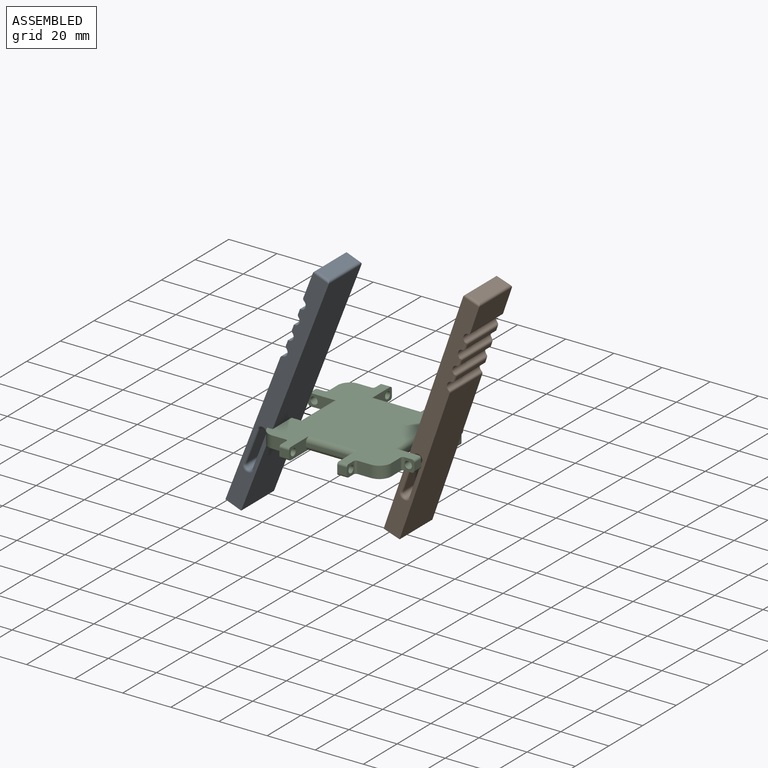
[diagram: assembled view]
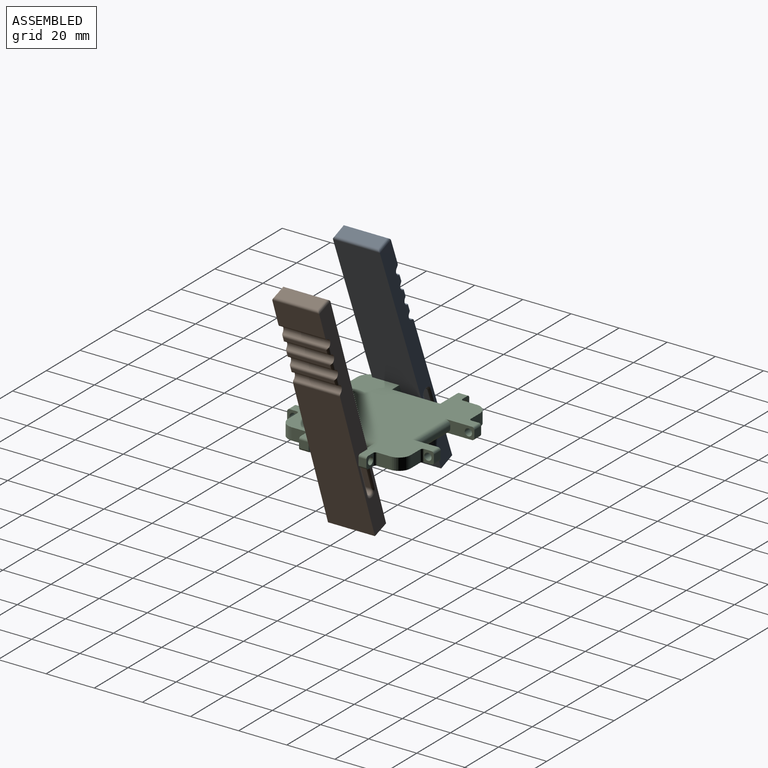
[diagram: assembled view, second angle]
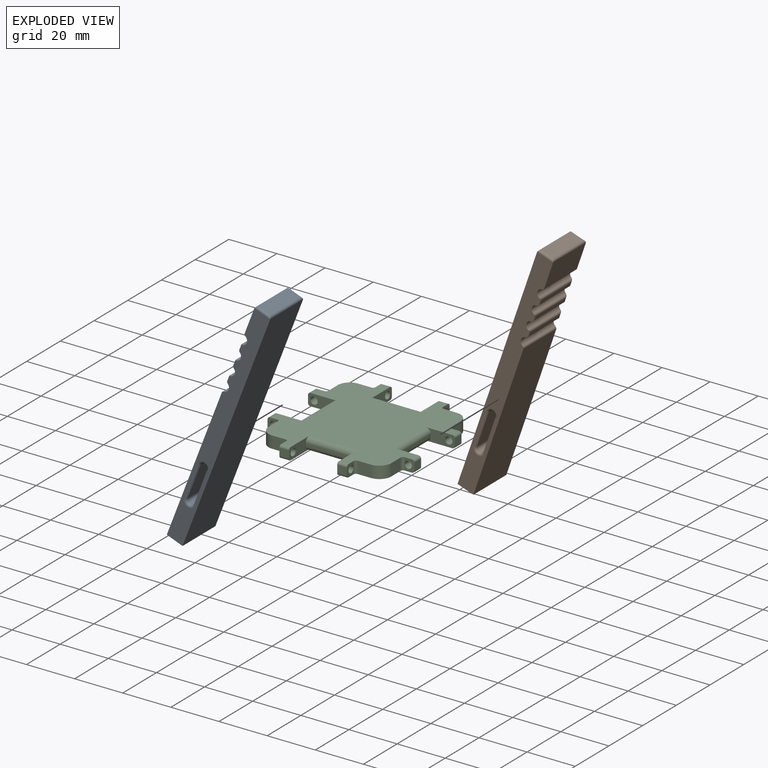
[diagram: exploded view]
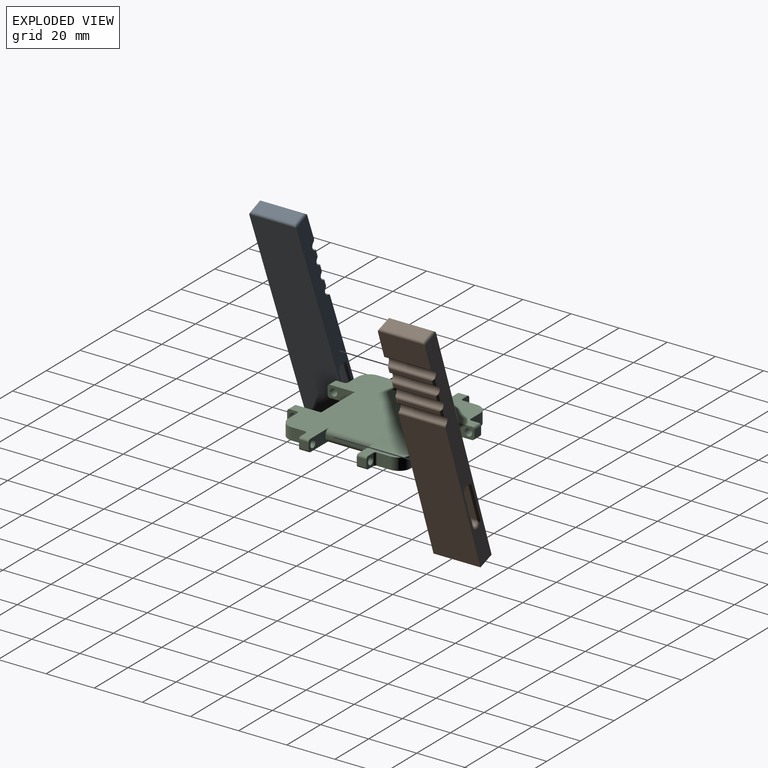
[diagram: exploded view, second angle]
ASSEMBLY  parts=3 mates=2
PART A: 55 faces, bbox 19.5x7x102.5 mm
  f0: plane 17.5x1.34mm, normal (0,-1,0), area 23.5mm2, adj f41,f42,f43,f44
  f1: plane 17.5x1.34mm, normal (0,-1,0), area 23.5mm2, adj f45,f46,f47,f48
  f2: plane 17.5x1.34mm, normal (0,-1,0), area 23.5mm2, adj f49,f50,f51,f52
  f3: plane 19.5x11.17mm, normal (0,-1,0), area 217.8mm2, adj f9,f10,f27,f53
  f4: cylinder r=2mm len=3.71mm, axis (0,0,-1), area 11.9mm2, adj f7,f30,f32,f36
  f5: plane 6x6mm, normal (0,0,-1), area 28.3mm2, adj f6
  f6: cylinder r=3mm len=6mm, axis (0,0,-1), area 113.1mm2, adj f5,f7
  f7: plane 6x6mm, normal (0,0,1), area 14.1mm2, adj f4,f6,f8,f31,f32,f33,f34,f35
  f8: cylinder r=2mm len=3.71mm, axis (0,0,-1), area 11.9mm2, adj f7,f30,f33,f35
  f9: plane 101.5x7mm, normal (-1,0,0), area 581mm2, adj f3,f12,f13,f18,f19,f20,f21,f29
  f10: plane 101.5x7mm, normal (1,0,0), area 581mm2, adj f3,f12,f13,f22,f23,f24,f25,f26
  f11: plane 17.5x5mm, normal (0,0,1), area 87.5mm2, adj f26,f27,f28,f29
  f12: plane 63.67x19.5mm, normal (0,-1,0), area 1241.6mm2, adj f9,f10,f30,f54
  f13: plane 101.5x19.5mm, normal (0,1,0), area 1979.3mm2, adj f9,f10,f28,f30
  f14: cylinder r=1.5mm len=17.5mm, axis (1,0,0), area 82.5mm2, adj f15,f17,f20,f24
  f15: plane 17.5x15mm, normal (0,-1,0), area 262.5mm2, adj f14,f16,f21,f22
  f16: cylinder r=1.5mm len=17.5mm, axis (1,0,0), area 82.5mm2, adj f15,f17,f19,f23
  f17: plane 17.5x15mm, normal (0,1,0), area 262.5mm2, adj f14,f16,f18,f25
  f18: cylinder r=1mm len=15mm, axis (0,0,-1), area 23.6mm2, adj f9,f17,f19,f20
  f19: torus R=2.5mm, axis (1,0,0), area 9.2mm2, adj f9,f16,f18,f21
  f20: torus R=2.5mm, axis (1,0,0), area 9.2mm2, adj f9,f14,f18,f21
  f21: cylinder r=1mm len=15mm, axis (0,0,1), area 23.6mm2, adj f9,f15,f19,f20
  f22: cylinder r=1mm len=15mm, axis (0,0,-1), area 23.6mm2, adj f10,f15,f23,f24
  f23: torus R=2.5mm, axis (1,0,0), area 9.2mm2, adj f10,f16,f22,f25
  f24: torus R=2.5mm, axis (1,0,0), area 9.2mm2, adj f10,f14,f22,f25
  f25: cylinder r=1mm len=15mm, axis (0,0,1), area 23.6mm2, adj f10,f17,f23,f24
  f26: cylinder r=1mm len=7mm, axis (0,1,0), area 9.9mm2, adj f10,f11,f27,f28
  f27: cylinder r=1mm len=19.5mm, axis (1,0,0), area 29.5mm2, adj f3,f11,f26,f29
  f28: cylinder r=1mm len=19.5mm, axis (-1,0,0), area 29.5mm2, adj f11,f13,f26,f29
  f29: cylinder r=1mm len=7mm, axis (0,-1,0), area 9.9mm2, adj f9,f11,f27,f28
  f30: plane 19.5x7mm, normal (0,0,-1), area 122.3mm2, adj f4,f8,f9,f10,f12,f13,f31,f32
  f31: plane 2.5x1.5mm, normal (-1,0,0), area 3.8mm2, adj f7,f30,f32,f33
  f32: plane 2.5x0.65mm, normal (0,1,0), area 1.6mm2, adj f4,f7,f30,f31
  f33: plane 2.5x0.65mm, normal (0,-1,0), area 1.6mm2, adj f7,f8,f30,f31
  f34: plane 2.5x1.5mm, normal (1,0,0), area 3.8mm2, adj f7,f30,f35,f36
  f35: plane 2.5x0.65mm, normal (0,-1,0), area 1.6mm2, adj f7,f8,f30,f34
  f36: plane 2.5x0.65mm, normal (0,1,0), area 1.6mm2, adj f4,f7,f30,f34
  f37: cylinder r=2mm len=19.5mm, axis (1,0,0), area 96mm2, adj f9,f10,f49,f50,f52,f53
  f38: cylinder r=2mm len=19.5mm, axis (1,0,0), area 96mm2, adj f9,f10,f45,f46,f48,f49,f51,f52
  f39: cylinder r=2mm len=19.5mm, axis (1,0,0), area 96mm2, adj f9,f10,f41,f42,f44,f45,f47,f48
  f40: cylinder r=2mm len=19.5mm, axis (1,0,0), area 96mm2, adj f9,f10,f41,f43,f44,f54
  f41: cylinder r=1mm len=3.54mm, axis (0,0,-1), area 4.1mm2, adj f0,f10,f39,f40,f42,f43
  f42: cylinder r=1mm len=19.39mm, axis (1,0,0), area 22.9mm2, adj f0,f39,f41,f44
  f43: cylinder r=1mm len=19.39mm, axis (1,0,0), area 22.9mm2, adj f0,f40,f41,f44
  f44: cylinder r=1mm len=3.54mm, axis (0,0,1), area 4.1mm2, adj f0,f9,f39,f40,f42,f43
  f45: cylinder r=1mm len=3.54mm, axis (0,0,-1), area 4.1mm2, adj f1,f10,f38,f39,f46,f47
  f46: cylinder r=1mm len=19.39mm, axis (1,0,0), area 22.9mm2, adj f1,f38,f45,f48
  f47: cylinder r=1mm len=19.39mm, axis (1,0,0), area 22.9mm2, adj f1,f39,f45,f48
  f48: cylinder r=1mm len=3.54mm, axis (0,0,1), area 4.1mm2, adj f1,f9,f38,f39,f46,f47
  f49: cylinder r=1mm len=3.54mm, axis (0,0,-1), area 4.1mm2, adj f2,f10,f37,f38,f50,f51
  f50: cylinder r=1mm len=19.39mm, axis (1,0,0), area 22.9mm2, adj f2,f37,f49,f52
  f51: cylinder r=1mm len=19.39mm, axis (1,0,0), area 22.9mm2, adj f2,f38,f49,f52
  f52: cylinder r=1mm len=3.54mm, axis (0,0,1), area 4.1mm2, adj f2,f9,f37,f38,f50,f51
  f53: cylinder r=1mm len=19.5mm, axis (1,0,0), area 24mm2, adj f3,f9,f10,f37
  f54: cylinder r=1mm len=19.5mm, axis (1,0,0), area 24mm2, adj f9,f10,f12,f40
PART B: same geometry as A
PART C: 87 faces, bbox 61x61x5 mm
  f0: plane 59x59mm, normal (0,0,1), area 2149.3mm2, adj f1,f2,f3,f4,f5,f6,f7,f8
  f1: plane 5.5x5mm, normal (0,-1,0), area 27.5mm2, adj f0,f9,f59,f86
  f2: plane 5.5x5mm, normal (-1,0,0), area 27.5mm2, adj f0,f9,f68,f84
  f3: plane 5.5x5mm, normal (0,1,0), area 27.5mm2, adj f0,f9,f74,f83
  f4: plane 5.5x5mm, normal (1,0,0), area 27.5mm2, adj f0,f9,f77,f83
  f5: plane 5.5x5mm, normal (1,0,0), area 27.5mm2, adj f0,f9,f80,f86
  f6: plane 5.5x5mm, normal (0,1,0), area 27.5mm2, adj f0,f9,f71,f84
  f7: plane 5.5x5mm, normal (-1,0,0), area 27.5mm2, adj f0,f9,f65,f85
  f8: plane 5.5x5mm, normal (0,-1,0), area 27.5mm2, adj f0,f9,f62,f85
  f9: plane 59x59mm, normal (0,0,-1), area 1771.3mm2, adj f1,f2,f3,f4,f5,f6,f7,f8
  f10: plane 12x5mm, normal (0,1,0), area 44.2mm2, adj f0,f9,f12,f17,f47,f57,f58,f81
  f11: plane 5x4mm, normal (0,-1,0), area 12.5mm2, adj f0,f9,f12,f17,f80,f81,f82
  f12: plane 4x3mm, normal (1,0,0), area 12mm2, adj f10,f11,f81,f82
  f13: plane 5x4mm, normal (0,1,0), area 12.5mm2, adj f0,f9,f15,f16,f77,f78,f79
  f14: plane 12x5mm, normal (0,-1,0), area 44.2mm2, adj f0,f9,f15,f16,f47,f57,f58,f78
  f15: plane 4x3mm, normal (1,0,0), area 12mm2, adj f13,f14,f78,f79
  f16: cylinder r=1.5mm len=4mm, axis (0,-1,0), area 37.7mm2, adj f13,f14
  f17: cylinder r=1.5mm len=4mm, axis (0,-1,0), area 37.7mm2, adj f10,f11
  f18: plane 12x5mm, normal (-1,0,0), area 44.2mm2, adj f0,f9,f20,f41,f50,f51,f52,f75
  f19: plane 5x4mm, normal (1,0,0), area 12.5mm2, adj f0,f9,f20,f41,f74,f75,f76
  f20: plane 4x3mm, normal (0,1,0), area 12mm2, adj f18,f19,f75,f76
  f21: plane 5x4mm, normal (-1,0,0), area 12.5mm2, adj f0,f9,f23,f40,f71,f72,f73
  f22: plane 12x5mm, normal (1,0,0), area 44.2mm2, adj f0,f9,f23,f40,f50,f51,f52,f72
  f23: plane 4x3mm, normal (0,1,0), area 12mm2, adj f21,f22,f72,f73
  f24: plane 12x5mm, normal (0,-1,0), area 44.2mm2, adj f0,f9,f26,f39,f49,f53,f54,f69
  f25: plane 5x4mm, normal (0,1,0), area 12.5mm2, adj f0,f9,f26,f39,f68,f69,f70
  f26: plane 4x3mm, normal (-1,0,0), area 12mm2, adj f24,f25,f69,f70
  f27: plane 5x4mm, normal (0,-1,0), area 12.5mm2, adj f0,f9,f29,f38,f65,f66,f67
  f28: plane 12x5mm, normal (0,1,0), area 44.2mm2, adj f0,f9,f29,f38,f49,f53,f54,f66
  f29: plane 4x3mm, normal (-1,0,0), area 12mm2, adj f27,f28,f66,f67
  f30: plane 12x5mm, normal (1,0,0), area 44.2mm2, adj f0,f9,f32,f37,f48,f55,f56,f63
  f31: plane 5x4mm, normal (-1,0,0), area 12.5mm2, adj f0,f9,f32,f37,f62,f63,f64
  f32: plane 4x3mm, normal (0,-1,0), area 12mm2, adj f30,f31,f63,f64
  f33: plane 5x4mm, normal (1,0,0), area 12.5mm2, adj f0,f9,f35,f36,f59,f60,f61
  f34: plane 12x5mm, normal (-1,0,0), area 44.2mm2, adj f0,f9,f35,f36,f48,f55,f56,f60
  f35: plane 4x3mm, normal (0,-1,0), area 12mm2, adj f33,f34,f60,f61
  f36: cylinder r=1.5mm len=4mm, axis (1,0,0), area 37.7mm2, adj f33,f34
  f37: cylinder r=1.5mm len=4mm, axis (1,0,0), area 37.7mm2, adj f30,f31
  f38: cylinder r=1.5mm len=4mm, axis (0,-1,0), area 37.7mm2, adj f27,f28
  f39: cylinder r=1.5mm len=4mm, axis (0,-1,0), area 37.7mm2, adj f24,f25
  f40: cylinder r=1.5mm len=4mm, axis (-1,0,0), area 37.7mm2, adj f21,f22
  f41: cylinder r=1.5mm len=4mm, axis (-1,0,0), area 37.7mm2, adj f18,f19
  f42: plane 28x2mm, normal (1,0,0), area 56mm2, adj f9,f43,f45,f46
  f43: plane 13.5x2mm, normal (0,-1,0), area 27mm2, adj f9,f42,f44,f46
  f44: plane 28x2mm, normal (-1,0,0), area 56mm2, adj f9,f43,f45,f46
  f45: plane 13.5x2mm, normal (0,1,0), area 27mm2, adj f9,f42,f44,f46
  f46: plane 28x13.5mm, normal (0,0,-1), area 378mm2, adj f42,f43,f44,f45
  f47: plane 20x1mm, normal (1,0,0), area 20mm2, adj f10,f14,f57,f58
  f48: plane 20x1mm, normal (0,-1,0), area 20mm2, adj f30,f34,f55,f56
  f49: plane 20x1mm, normal (-1,0,0), area 20mm2, adj f24,f28,f53,f54
  f50: plane 20x1mm, normal (0,1,0), area 20mm2, adj f18,f22,f51,f52
  f51: cylinder r=2mm len=20mm, axis (1,0,0), area 62.8mm2, adj f0,f18,f22,f50
  f52: cylinder r=2mm len=20mm, axis (-1,0,0), area 62.8mm2, adj f9,f18,f22,f50
  f53: cylinder r=2mm len=20mm, axis (0,1,0), area 62.8mm2, adj f0,f24,f28,f49
  f54: cylinder r=2mm len=20mm, axis (0,-1,0), area 62.8mm2, adj f9,f24,f28,f49
  f55: cylinder r=2mm len=20mm, axis (-1,0,0), area 62.8mm2, adj f0,f30,f34,f48
  f56: cylinder r=2mm len=20mm, axis (1,0,0), area 62.8mm2, adj f9,f30,f34,f48
  f57: cylinder r=2mm len=20mm, axis (0,-1,0), area 62.8mm2, adj f0,f10,f14,f47
  f58: cylinder r=2mm len=20mm, axis (0,1,0), area 62.8mm2, adj f9,f10,f14,f47
  f59: cylinder r=1mm len=5mm, axis (0,0,1), area 7.9mm2, adj f0,f1,f9,f33
  f60: cylinder r=1mm len=4mm, axis (-1,0,0), area 6.3mm2, adj f0,f33,f34,f35
  f61: cylinder r=1mm len=4mm, axis (1,0,0), area 6.3mm2, adj f9,f33,f34,f35
  f62: cylinder r=1mm len=5mm, axis (0,0,-1), area 7.9mm2, adj f0,f8,f9,f31
  f63: cylinder r=1mm len=4mm, axis (-1,0,0), area 6.3mm2, adj f0,f30,f31,f32
  f64: cylinder r=1mm len=4mm, axis (1,0,0), area 6.3mm2, adj f9,f30,f31,f32
  f65: cylinder r=1mm len=5mm, axis (0,0,-1), area 7.9mm2, adj f0,f7,f9,f27
  f66: cylinder r=1mm len=4mm, axis (0,-1,0), area 6.3mm2, adj f0,f27,f28,f29
  f67: cylinder r=1mm len=4mm, axis (0,1,0), area 6.3mm2, adj f9,f27,f28,f29
  f68: cylinder r=1mm len=5mm, axis (0,0,1), area 7.9mm2, adj f0,f2,f9,f25
  f69: cylinder r=1mm len=4mm, axis (0,-1,0), area 6.3mm2, adj f0,f24,f25,f26
  f70: cylinder r=1mm len=4mm, axis (0,1,0), area 6.3mm2, adj f9,f24,f25,f26
  f71: cylinder r=1mm len=5mm, axis (0,0,-1), area 7.9mm2, adj f0,f6,f9,f21
  f72: cylinder r=1mm len=4mm, axis (-1,0,0), area 6.3mm2, adj f0,f21,f22,f23
  f73: cylinder r=1mm len=4mm, axis (1,0,0), area 6.3mm2, adj f9,f21,f22,f23
  f74: cylinder r=1mm len=5mm, axis (0,0,1), area 7.9mm2, adj f0,f3,f9,f19
  f75: cylinder r=1mm len=4mm, axis (-1,0,0), area 6.3mm2, adj f0,f18,f19,f20
  f76: cylinder r=1mm len=4mm, axis (1,0,0), area 6.3mm2, adj f9,f18,f19,f20
  f77: cylinder r=1mm len=5mm, axis (0,0,1), area 7.9mm2, adj f0,f4,f9,f13
  f78: cylinder r=1mm len=4mm, axis (0,-1,0), area 6.3mm2, adj f0,f13,f14,f15
  f79: cylinder r=1mm len=4mm, axis (0,1,0), area 6.3mm2, adj f9,f13,f14,f15
  f80: cylinder r=1mm len=5mm, axis (0,0,-1), area 7.9mm2, adj f0,f5,f9,f11
  f81: cylinder r=1mm len=4mm, axis (0,-1,0), area 6.3mm2, adj f0,f10,f11,f12
  f82: cylinder r=1mm len=4mm, axis (0,1,0), area 6.3mm2, adj f9,f10,f11,f12
  f83: cylinder r=5mm len=5mm, axis (0,0,1), area 39.3mm2, adj f0,f3,f4,f9
  f84: cylinder r=5mm len=5mm, axis (0,0,-1), area 39.3mm2, adj f0,f2,f6,f9
  f85: cylinder r=5mm len=5mm, axis (0,0,1), area 39.3mm2, adj f0,f7,f8,f9
  f86: cylinder r=5mm len=5mm, axis (0,0,-1), area 39.3mm2, adj f0,f1,f5,f9
PLACE A rot(axis=(-0.18,0.18,-0.97),91.9deg) t=(-42.28,12.96,-4.01)mm
PLACE B rot(axis=(0.16,0.16,0.97),91.6deg) t=(7.68,16.91,-1.81)mm
PLACE C t=(-11.71,20.22,9.94)mm
MATE cylindrical A.f19 <-> C.f38  axis (0,-1,0) through (-39.71,-0.04,12.44)mm
MATE cylindrical B.f23 <-> C.f16  axis (0,1,0) through (16.29,12.41,12.44)mm
